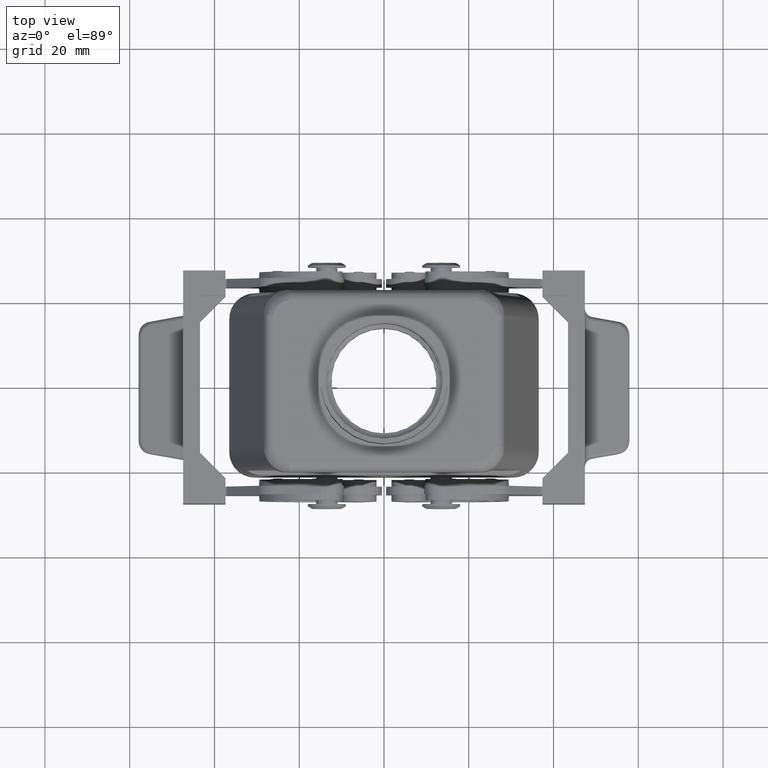
[diagram: clean part render]
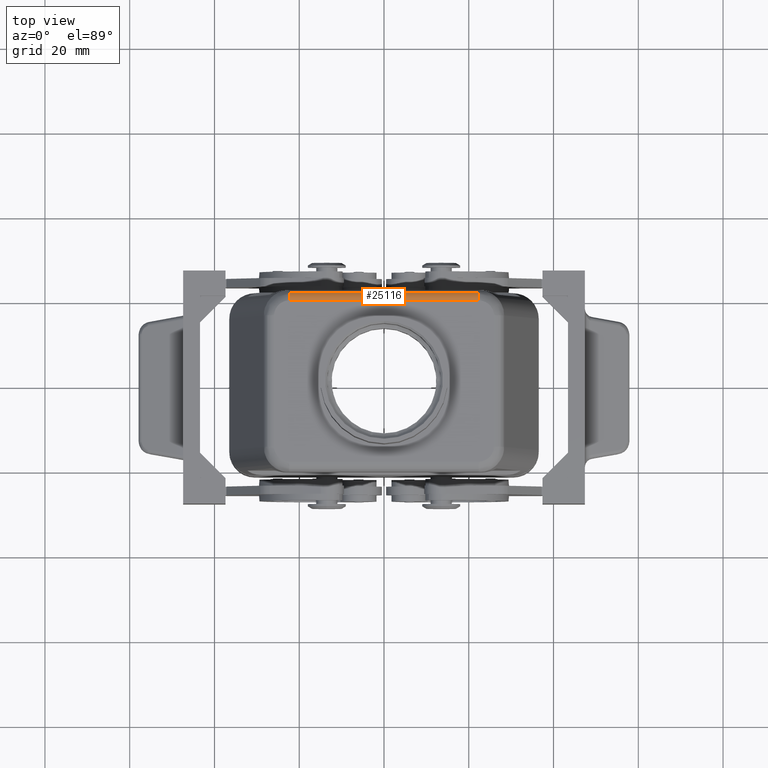
[diagram: same view with one face highlighted and labeled with its STEP entity id]
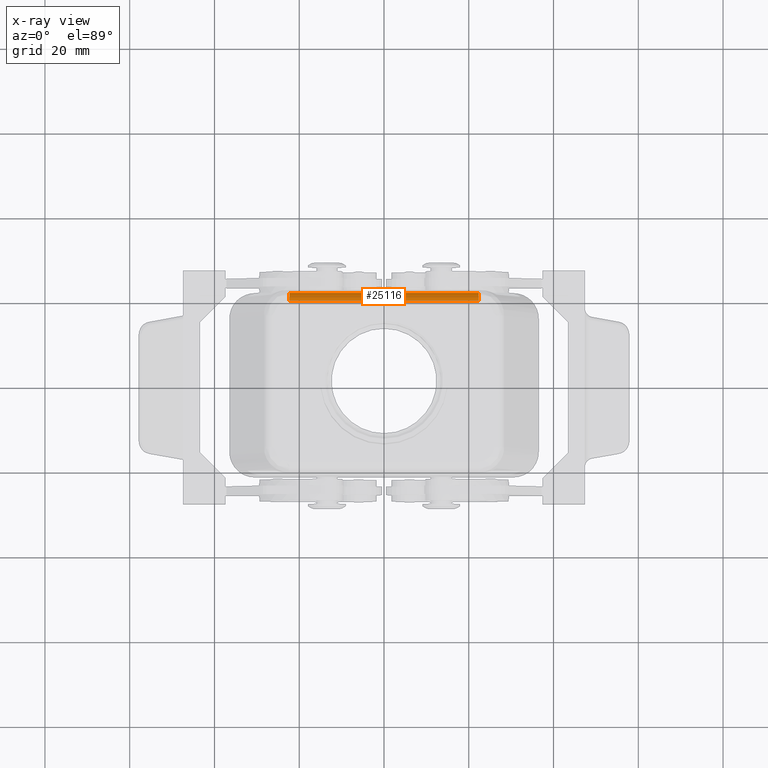
[diagram: x-ray of the same camera — body ghosted, the highlighted face saturated]
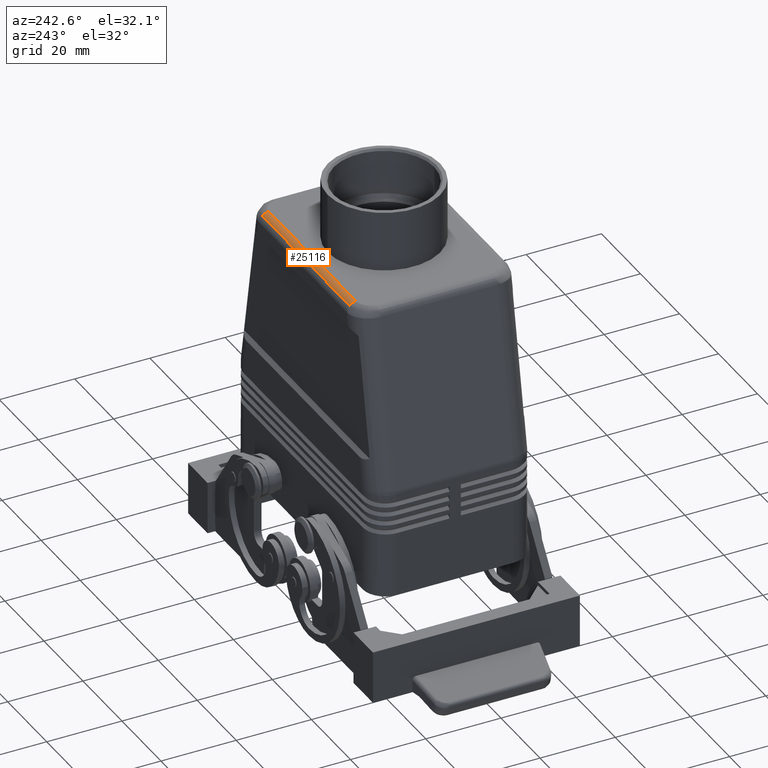
[diagram: same view with one face highlighted and labeled with its STEP entity id]
A machine part, top view. The second image highlights one B-rep face of the part: STEP entity #25116.
The next image is the same camera in x-ray: the body ghosted, the highlighted face saturated — about 0% of this face is hidden behind the body in this view.
A second angle (auxiliary view) of the same face is appended — the face is thin or edge-on in the first view.
In plain terms, the highlighted cylindrical surface (edge-blend (fillet) strip) has radius 2.5 mm, axis along (-1, 0, 0).
Its self-contained STEP definition (entity closure, byte-faithful):
#1564=CARTESIAN_POINT('',(22.357570124835192,20.767766952966369,74.267766952966355));
#1565=VERTEX_POINT('',#1564);
#1566=CARTESIAN_POINT('',(-22.357570124835195,20.767766952966369,74.267766952966355));
#1567=VERTEX_POINT('',#1566);
#1568=CARTESIAN_POINT('',(22.357570124835192,20.767766952966369,74.267766952966355));
#1569=DIRECTION('',(-1.0,0.0,0.0));
#1570=VECTOR('',#1569,44.715140249670384);
#1571=LINE('',#1568,#1570);
#1572=EDGE_CURVE('',#1565,#1567,#1571,.T.);
#24570=CARTESIAN_POINT('',(22.357570124835192,19.0,74.999999999999986));
#24571=VERTEX_POINT('',#24570);
#24572=CARTESIAN_POINT('',(22.357570124835192,19.0,72.499999999999986));
#24573=DIRECTION('',(1.0,0.0,0.0));
#24574=DIRECTION('',(0.0,1.0,0.0));
#24575=AXIS2_PLACEMENT_3D('',#24572,#24573,#24574);
#24576=CIRCLE('',#24575,2.500000000000000);
#24577=EDGE_CURVE('',#1565,#24571,#24576,.T.);
#24694=CARTESIAN_POINT('',(-22.357570124835195,19.0,74.999999999999986));
#24695=VERTEX_POINT('',#24694);
#24696=CARTESIAN_POINT('',(-22.357570124835195,19.0,74.999999999999986));
#24697=DIRECTION('',(1.0,0.0,0.0));
#24698=VECTOR('',#24697,44.715140249670384);
#24699=LINE('',#24696,#24698);
#24700=EDGE_CURVE('',#24695,#24571,#24699,.T.);
#25051=CARTESIAN_POINT('',(-22.357570124835195,19.0,72.499999999999986));
#25052=DIRECTION('',(-1.0,0.0,0.0));
#25053=DIRECTION('',(0.0,0.0,1.0));
#25054=AXIS2_PLACEMENT_3D('',#25051,#25052,#25053);
#25055=CIRCLE('',#25054,2.500000000000000);
#25056=EDGE_CURVE('',#24695,#1567,#25055,.T.);
#25105=CARTESIAN_POINT('',(14.000000000000002,19.0,72.499999999999986));
#25106=DIRECTION('',(-1.0,0.0,0.0));
#25107=DIRECTION('',(0.0,0.707106781186547,0.707106781186547));
#25108=AXIS2_PLACEMENT_3D('',#25105,#25106,#25107);
#25109=CYLINDRICAL_SURFACE('',#25108,2.500000000000000);
#25110=ORIENTED_EDGE('',*,*,#1572,.T.);
#25111=ORIENTED_EDGE('',*,*,#25056,.F.);
#25112=ORIENTED_EDGE('',*,*,#24700,.T.);
#25113=ORIENTED_EDGE('',*,*,#24577,.F.);
#25114=EDGE_LOOP('',(#25110,#25111,#25112,#25113));
#25115=FACE_OUTER_BOUND('',#25114,.T.);
#25116=ADVANCED_FACE('',(#25115),#25109,.T.);